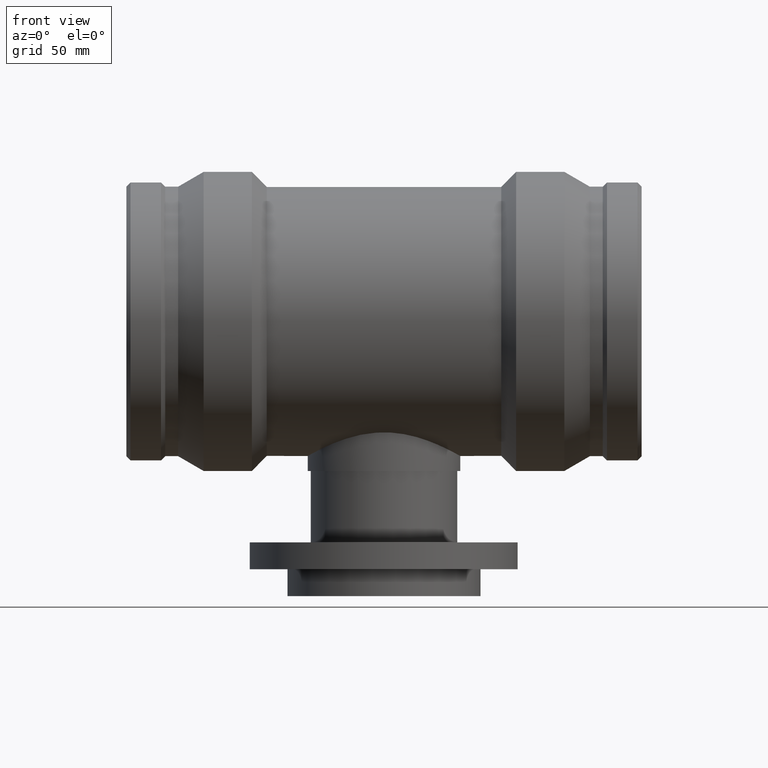
[diagram: clean part render]
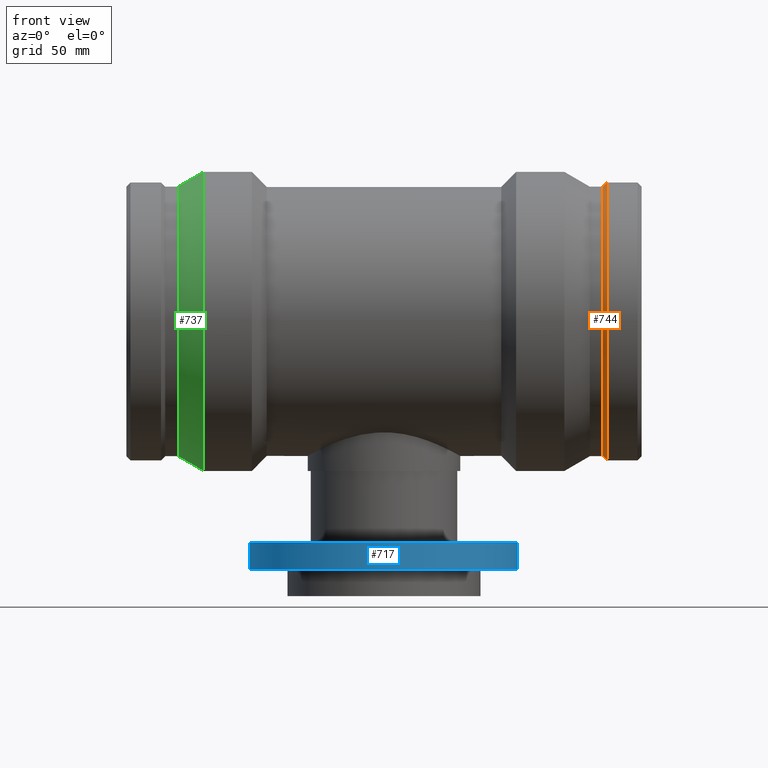
[diagram: same view with three faces highlighted in distinct colors, each labeled with its STEP entity id]
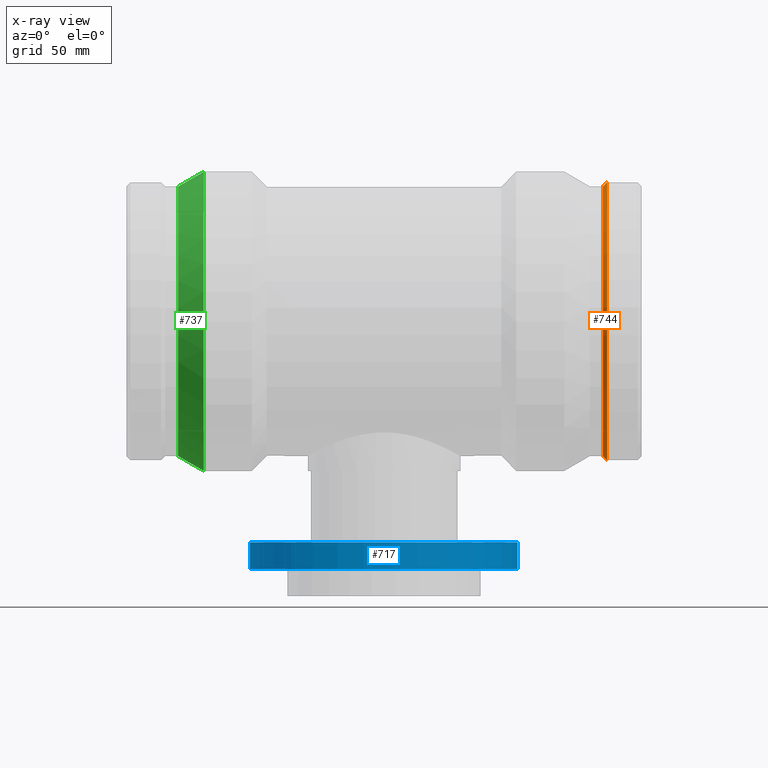
[diagram: x-ray of the same camera — body ghosted, the three highlighted faces saturated]
A machine part, front view with three faces highlighted in distinct colors.
The next image is the same camera in x-ray (body ghosted, the three faces saturated) — at least one of them is partly hidden behind the body in this view.
Their STEP definitions:

[orange] entity #744 — the highlighted conical surface has half-angle 45 deg.
#24=CONICAL_SURFACE('',#855,112.216125,44.9999999999999);
#104=FACE_BOUND('',#381,.T.);
#170=CIRCLE('',#854,110.50725);
#171=CIRCLE('',#856,113.925);
#260=FACE_OUTER_BOUND('',#380,.T.);
#380=EDGE_LOOP('',(#666));
#381=EDGE_LOOP('',(#667));
#473=VERTEX_POINT('',#1685);
#474=VERTEX_POINT('',#1688);
#543=EDGE_CURVE('',#473,#473,#170,.T.);
#544=EDGE_CURVE('',#474,#474,#171,.T.);
#666=ORIENTED_EDGE('',*,*,#543,.T.);
#667=ORIENTED_EDGE('',*,*,#544,.F.);
#744=ADVANCED_FACE('',(#260,#104),#24,.T.);
#854=AXIS2_PLACEMENT_3D('',#1686,#1073,#1074);
#855=AXIS2_PLACEMENT_3D('',#1687,#1075,#1076);
#856=AXIS2_PLACEMENT_3D('',#1689,#1077,#1078);
#1073=DIRECTION('center_axis',(1.,0.,0.));
#1074=DIRECTION('ref_axis',(0.,0.,-1.));
#1075=DIRECTION('center_axis',(1.,0.,0.));
#1076=DIRECTION('ref_axis',(0.,1.,0.));
#1077=DIRECTION('center_axis',(1.,0.,0.));
#1078=DIRECTION('ref_axis',(0.,0.,-1.));
#1685=CARTESIAN_POINT('',(179.2,110.50725,0.));
#1686=CARTESIAN_POINT('Origin',(179.2,0.,0.));
#1687=CARTESIAN_POINT('Origin',(180.908875,0.,0.));
#1688=CARTESIAN_POINT('',(182.61775,113.925,0.));
#1689=CARTESIAN_POINT('Origin',(182.61775,0.,0.));

[blue] entity #717 — the highlighted cylindrical surface (bore or boss wall) has radius 110 mm, axis along (-0, 0, -1).
#69=FACE_BOUND('',#319,.T.);
#145=CIRCLE('',#802,110.);
#146=CIRCLE('',#804,110.);
#198=CYLINDRICAL_SURFACE('',#803,110.);
#233=FACE_OUTER_BOUND('',#318,.T.);
#318=EDGE_LOOP('',(#604));
#319=EDGE_LOOP('',(#605));
#446=VERTEX_POINT('',#1538);
#447=VERTEX_POINT('',#1541);
#516=EDGE_CURVE('',#446,#446,#145,.T.);
#517=EDGE_CURVE('',#447,#447,#146,.T.);
#604=ORIENTED_EDGE('',*,*,#516,.T.);
#605=ORIENTED_EDGE('',*,*,#517,.F.);
#717=ADVANCED_FACE('',(#233,#69),#198,.T.);
#802=AXIS2_PLACEMENT_3D('',#1539,#969,#970);
#803=AXIS2_PLACEMENT_3D('',#1540,#971,#972);
#804=AXIS2_PLACEMENT_3D('',#1542,#973,#974);
#969=DIRECTION('center_axis',(-1.22464679914735E-16,0.,-1.));
#970=DIRECTION('ref_axis',(1.,0.,-1.22464679914735E-16));
#971=DIRECTION('center_axis',(-1.22464679914735E-16,0.,-1.));
#972=DIRECTION('ref_axis',(-1.,0.,0.));
#973=DIRECTION('center_axis',(-1.22464679914735E-16,0.,-1.));
#974=DIRECTION('ref_axis',(1.,0.,-1.22464679914735E-16));
#1538=CARTESIAN_POINT('',(-110.,0.,-181.));
#1539=CARTESIAN_POINT('Origin',(-2.21661070645671E-14,0.,-181.));
#1540=CARTESIAN_POINT('Origin',(-2.35132185436292E-14,0.,-192.));
#1541=CARTESIAN_POINT('',(-110.,0.,-203.));
#1542=CARTESIAN_POINT('Origin',(-2.48603300226913E-14,0.,-203.));

[green] entity #737 — the highlighted conical surface has half-angle 29.848 deg.
#20=CONICAL_SURFACE('',#842,116.503625,29.8478844700235);
#97=FACE_BOUND('',#367,.T.);
#164=CIRCLE('',#841,110.50725);
#165=CIRCLE('',#843,122.5);
#253=FACE_OUTER_BOUND('',#366,.T.);
#366=EDGE_LOOP('',(#652));
#367=EDGE_LOOP('',(#653));
#467=VERTEX_POINT('',#1666);
#468=VERTEX_POINT('',#1669);
#537=EDGE_CURVE('',#467,#467,#164,.T.);
#538=EDGE_CURVE('',#468,#468,#165,.T.);
#652=ORIENTED_EDGE('',*,*,#537,.T.);
#653=ORIENTED_EDGE('',*,*,#538,.F.);
#737=ADVANCED_FACE('',(#253,#97),#20,.T.);
#841=AXIS2_PLACEMENT_3D('',#1667,#1047,#1048);
#842=AXIS2_PLACEMENT_3D('',#1668,#1049,#1050);
#843=AXIS2_PLACEMENT_3D('',#1670,#1051,#1052);
#1047=DIRECTION('center_axis',(1.,0.,0.));
#1048=DIRECTION('ref_axis',(0.,0.,-1.));
#1049=DIRECTION('center_axis',(1.,0.,0.));
#1050=DIRECTION('ref_axis',(0.,1.,0.));
#1051=DIRECTION('center_axis',(1.,0.,0.));
#1052=DIRECTION('ref_axis',(0.,0.,-1.));
#1666=CARTESIAN_POINT('',(-168.6,110.50725,0.));
#1667=CARTESIAN_POINT('Origin',(-168.6,0.,0.));
#1668=CARTESIAN_POINT('Origin',(-158.15,0.,0.));
#1669=CARTESIAN_POINT('',(-147.7,122.5,0.));
#1670=CARTESIAN_POINT('Origin',(-147.7,0.,0.));